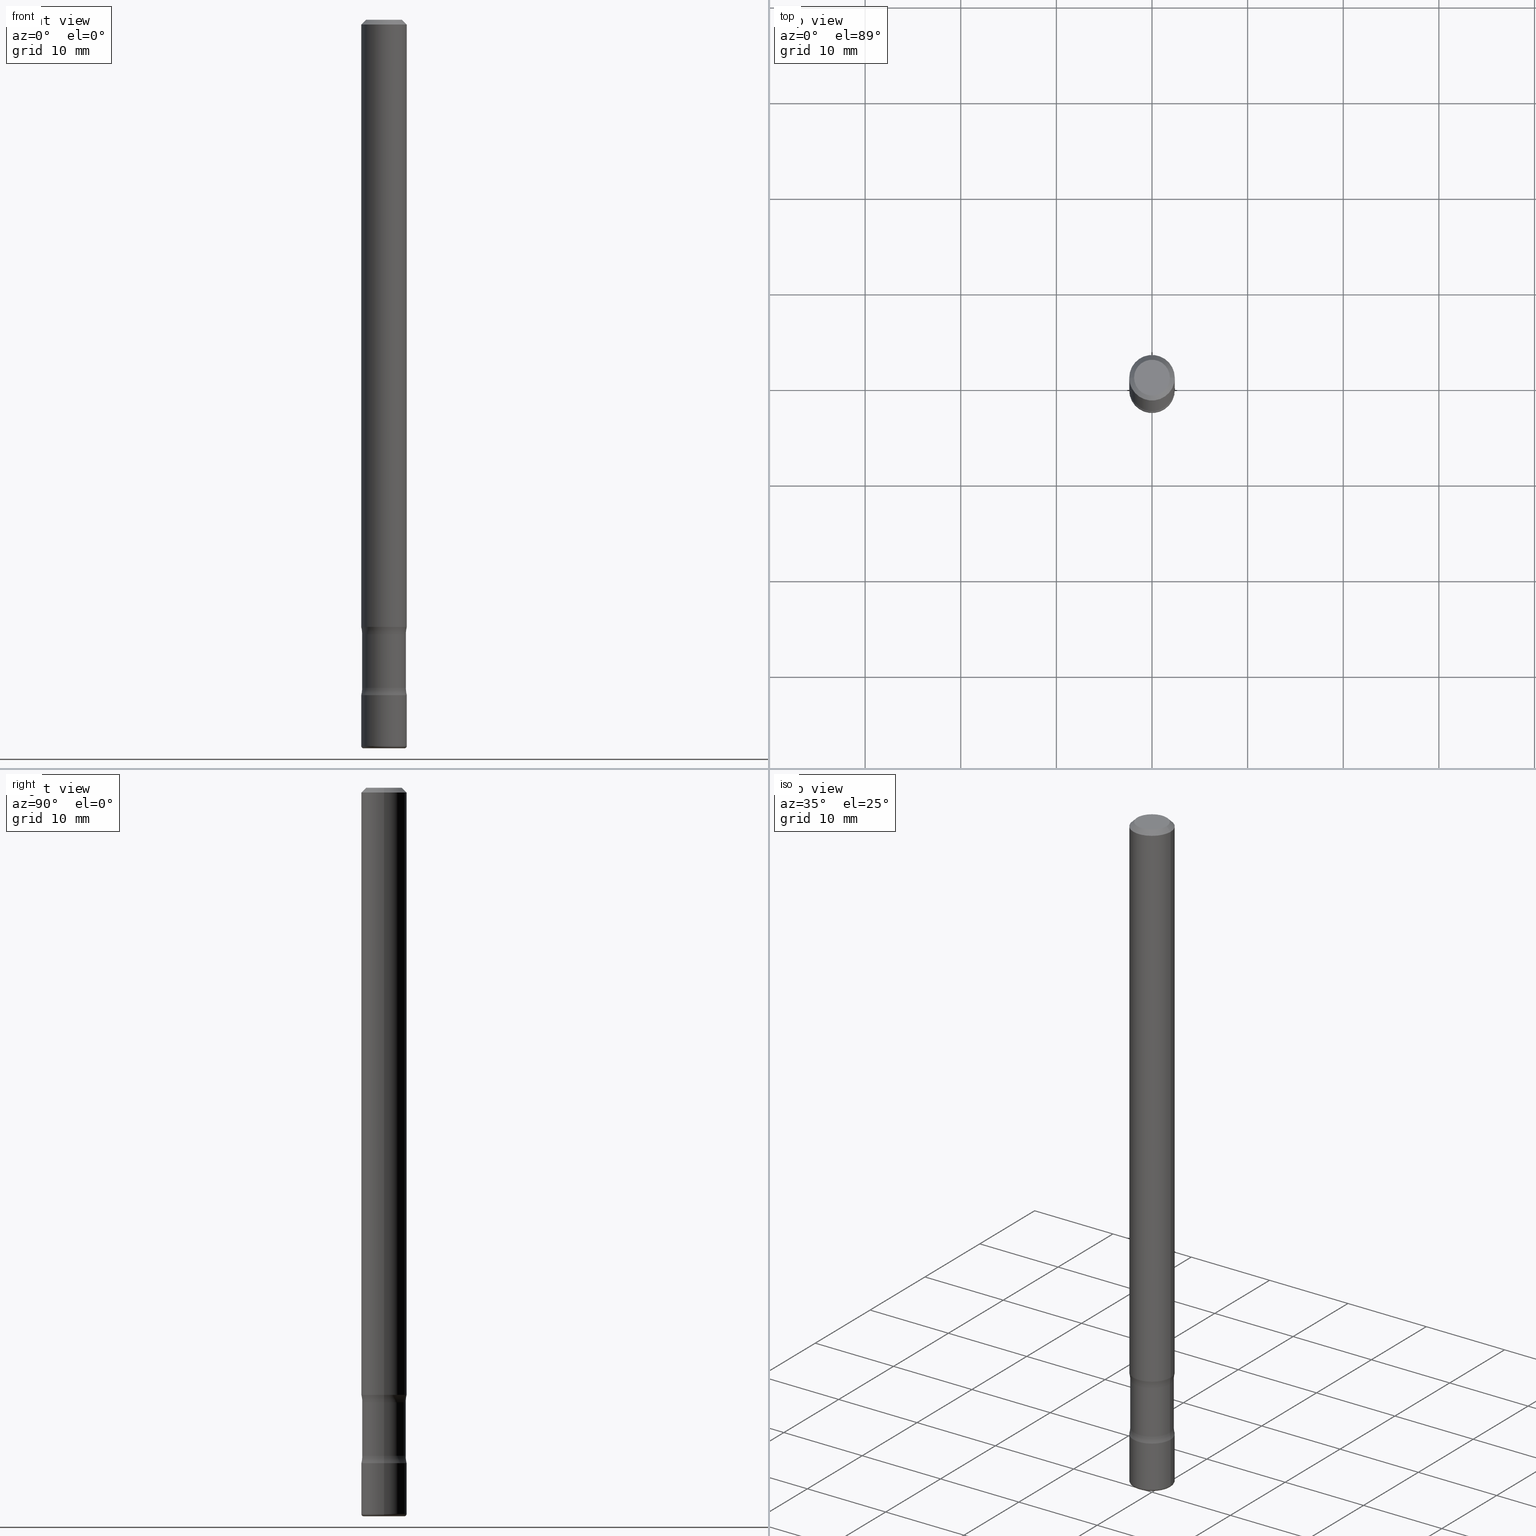
[diagram: canonical four-view strip — front | top / right | iso, engineering-drawing reading convention]
A machine part, canonical four-view strip (front | top / right | iso — engineering-drawing reading convention). The complete STEP part file that produces these views, byte-faithful:
ISO-10303-21;
HEADER;
FILE_DESCRIPTION (( 'STEP AP203' ),
    '1' );
FILE_NAME ('32752.STEP',
    '2023-03-11T07:00:07',
    ( '' ),
    ( '' ),
    'SwSTEP 2.0',
    'SolidWorks 2022',
    '' );
FILE_SCHEMA (( 'CONFIG_CONTROL_DESIGN' ));
ENDSEC;

DATA;
#1 = DIRECTION ( 'NONE',  ( -1.000000000000000000, 6.982962677686266711E-15, 0.000000000000000000 ) ) ;
#2 = AXIS2_PLACEMENT_3D ( 'NONE', #134, #204, #695 ) ;
#3 = CIRCLE ( 'NONE', #43, 0.09374999999999998612 ) ;
#4 = ADVANCED_FACE ( 'NONE', ( #296, #430 ), #773, .F. ) ;
#5 = DIRECTION ( 'NONE',  ( -1.000000000000000000, 6.982962677686265922E-15, -4.876176775795935793E-29 ) ) ;
#6 = SHAPE_DEFINITION_REPRESENTATION ( #364, #195 ) ;
#7 = EDGE_CURVE ( 'NONE', #788, #540, #284, .T. ) ;
#8 = DIRECTION ( 'NONE',  ( 2.445468806185136597E-29, -3.491481338843145583E-15, -1.000000000000000000 ) ) ;
#9 = AXIS2_PLACEMENT_3D ( 'NONE', #556, #499, #735 ) ;
#10 = CARTESIAN_POINT ( 'NONE',  ( 0.09374999999999998612, -1.036516065062364471E-14, -2.781200000000000561 ) ) ;
#11 = DIRECTION ( 'NONE',  ( -2.445468806185136597E-29, 3.491481338843145583E-15, 1.000000000000000000 ) ) ;
#12 = ORIENTED_EDGE ( 'NONE', *, *, #467, .T. ) ;
#13 = AXIS2_PLACEMENT_3D ( 'NONE', #61, #564, #316 ) ;
#14 = CIRCLE ( 'NONE', #463, 0.1250000000000000000 ) ;
#15 = DIRECTION ( 'NONE',  ( -2.445468806185136597E-29, 3.491481338843145583E-15, 1.000000000000000000 ) ) ;
#16 = DIRECTION ( 'NONE',  ( -2.445468806185136877E-29, 3.491481338843145188E-15, 1.000000000000000000 ) ) ;
#17 = VERTEX_POINT ( 'NONE', #740 ) ;
#18 = EDGE_CURVE ( 'NONE', #267, #110, #238, .T. ) ;
#19 = ORIENTED_EDGE ( 'NONE', *, *, #201, .F. ) ;
#20 = DIRECTION ( 'NONE',  ( -1.000000000000000000, 6.982962677686263555E-15, 0.000000000000000000 ) ) ;
#21 = CIRCLE ( 'NONE', #609, 0.1249999999999999584 ) ;
#22 = ORIENTED_EDGE ( 'NONE', *, *, #265, .F. ) ;
#23 = CARTESIAN_POINT ( 'NONE',  ( 0.08999999999999992728, -1.023287500604753476E-14, -2.750811885547141511 ) ) ;
#24 = AXIS2_PLACEMENT_3D ( 'NONE', #623, #69, #562 ) ;
#25 = CIRCLE ( 'NONE', #751, 0.09374999999999998612 ) ;
#26 = AXIS2_PLACEMENT_3D ( 'NONE', #414, #396, #651 ) ;
#27 = ORIENTED_EDGE ( 'NONE', *, *, #384, .F. ) ;
#28 = FACE_OUTER_BOUND ( 'NONE', #729, .T. ) ;
#29 = ADVANCED_FACE ( 'NONE', ( #307 ), #689, .F. ) ;
#30 = EDGE_LOOP ( 'NONE', ( #214, #333 ) ) ;
#31 = CARTESIAN_POINT ( 'NONE',  ( 6.727024657788853144E-29, -9.604408365055772961E-15, -2.750811885547141955 ) ) ;
#32 = CARTESIAN_POINT ( 'NONE',  ( 0.000000000000000000, 0.000000000000000000, 0.000000000000000000 ) ) ;
#33 = ORIENTED_EDGE ( 'NONE', *, *, #643, .T. ) ;
#34 = ADVANCED_FACE ( 'NONE', ( #128 ), #795, .F. ) ;
#35 = VERTEX_POINT ( 'NONE', #116 ) ;
#36 = DIRECTION ( 'NONE',  ( -2.445468806185136597E-29, 3.491481338843145583E-15, 1.000000000000000000 ) ) ;
#37 = DIRECTION ( 'NONE',  ( 1.000000000000000000, -6.982962677686265922E-15, 4.876176775795935793E-29 ) ) ;
#38 = AXIS2_PLACEMENT_3D ( 'NONE', #531, #522, #527 ) ;
#39 = DIRECTION ( 'NONE',  ( 1.000000000000000000, -6.982962677686263555E-15, 0.000000000000000000 ) ) ;
#40 = AXIS2_PLACEMENT_3D ( 'NONE', #293, #150, #787 ) ;
#41 = CARTESIAN_POINT ( 'NONE',  ( 0.2149999999999998856, -1.107941543457665199E-14, -2.750811885547141955 ) ) ;
#42 = EDGE_LOOP ( 'NONE', ( #19, #352 ) ) ;
#43 = AXIS2_PLACEMENT_3D ( 'NONE', #731, #54, #490 ) ;
#44 = EDGE_LOOP ( 'NONE', ( #668, #175, #658, #719 ) ) ;
#45 = CARTESIAN_POINT ( 'NONE',  ( 0.09374999999999998612, -9.371875034398946027E-15, -2.500000000000000000 ) ) ;
#46 = PLANE ( 'NONE',  #425 ) ;
#47 = CALENDAR_DATE ( 2023, 11, 3 ) ;
#48 = ORIENTED_EDGE ( 'NONE', *, *, #455, .F. ) ;
#49 = VERTEX_POINT ( 'NONE', #53 ) ;
#50 = CARTESIAN_POINT ( 'NONE',  ( 0.09374999999999998612, -6.546527510330874055E-16, 4.571415727308689105E-30 ) ) ;
#51 = ADVANCED_FACE ( 'NONE', ( #191 ), #255, .T. ) ;
#52 = PERSON_AND_ORGANIZATION ( #603, #77 ) ;
#53 = CARTESIAN_POINT ( 'NONE',  ( 7.330054968152206104E-29, -1.046537582866243864E-14, -2.997402767769051568 ) ) ;
#54 = DIRECTION ( 'NONE',  ( -2.445468806185136597E-29, 3.491481338843145583E-15, 1.000000000000000000 ) ) ;
#55 = COORDINATED_UNIVERSAL_TIME_OFFSET ( 5, 0, .BEHIND. ) ;
#56 = ORIENTED_EDGE ( 'NONE', *, *, #417, .F. ) ;
#57 = TOROIDAL_SURFACE ( 'NONE', #322, 0.2149999999999998856, 0.1250000000000000000 ) ;
#58 = DIRECTION ( 'NONE',  ( 2.438088387897960049E-29, -3.491481338843145188E-15, -1.000000000000000000 ) ) ;
#59 = DIRECTION ( 'NONE',  ( -1.000000000000000000, 6.982962677686273810E-15, 0.000000000000000000 ) ) ;
#60 = ORIENTED_EDGE ( 'NONE', *, *, #500, .T. ) ;
#61 = CARTESIAN_POINT ( 'NONE',  ( 6.113672015462842613E-29, -8.728703347107864943E-15, -2.500000000000000000 ) ) ;
#62 = APPLICATION_CONTEXT ( 'configuration controlled 3d designs of mechanical parts and assemblies' ) ;
#63 = EDGE_CURVE ( 'NONE', #162, #544, #615, .T. ) ;
#64 = DIRECTION ( 'NONE',  ( 1.000000000000000000, -6.982962677686265133E-15, 4.876176775795935793E-29 ) ) ;
#65 = APPROVAL_ROLE ( '' ) ;
#66 = CARTESIAN_POINT ( 'NONE',  ( 0.09375000000000002776, -1.036516065062364471E-14, -2.781200000000000561 ) ) ;
#67 = ADVANCED_FACE ( 'NONE', ( #803 ), #571, .F. ) ;
#68 = ADVANCED_FACE ( 'NONE', ( #493 ), #192, .F. ) ;
#69 = DIRECTION ( 'NONE',  ( -6.982962677686266711E-15, -1.000000000000000000, 3.491481338843145583E-15 ) ) ;
#70 = TOROIDAL_SURFACE ( 'NONE', #143, 0.2149999999999998856, 0.1250000000000000000 ) ;
#71 = TOROIDAL_SURFACE ( 'NONE', #521, 0.2149999999999998856, 0.1249999999999999584 ) ;
#72 = ADVANCED_FACE ( 'NONE', ( #446 ), #156, .T. ) ;
#73 = DIRECTION ( 'NONE',  ( -2.438088387897960049E-29, 3.491481338843145188E-15, 1.000000000000000000 ) ) ;
#74 = CARTESIAN_POINT ( 'NONE',  ( 6.801337843762102328E-29, -9.710507899590557993E-15, -2.781200000000000561 ) ) ;
#75 = DIRECTION ( 'NONE',  ( 1.000000000000000000, -6.982962677686265922E-15, 4.883557194083112901E-29 ) ) ;
#76 = DIRECTION ( 'NONE',  ( 2.445468806185136597E-29, -3.491481338843145583E-15, -1.000000000000000000 ) ) ;
#77 = ORGANIZATION ( 'UNSPECIFIED', 'UNSPECIFIED', '' ) ;
#78 = CARTESIAN_POINT ( 'NONE',  ( 6.801337843762102328E-29, -9.710507899590557993E-15, -2.781200000000000561 ) ) ;
#79 = CIRCLE ( 'NONE', #40, 0.1250000000000000000 ) ;
#80 = VERTEX_POINT ( 'NONE', #309 ) ;
#81 = CARTESIAN_POINT ( 'NONE',  ( 6.727024657788852023E-29, -9.604408365055771383E-15, -2.750811885547141511 ) ) ;
#82 = CARTESIAN_POINT ( 'NONE',  ( 7.336406418555409790E-29, -1.047444401652943635E-14, -3.000000000000000444 ) ) ;
#83 = ORIENTED_EDGE ( 'NONE', *, *, #210, .T. ) ;
#84 = DIRECTION ( 'NONE',  ( -6.982962677686266711E-15, -1.000000000000000000, 3.491481338843145583E-15 ) ) ;
#85 = EDGE_LOOP ( 'NONE', ( #385, #790 ) ) ;
#86 = APPROVAL ( #376, 'UNSPECIFIED' ) ;
#87 = EDGE_CURVE ( 'NONE', #479, #484, #712, .T. ) ;
#88 =( GEOMETRIC_REPRESENTATION_CONTEXT ( 3 ) GLOBAL_UNCERTAINTY_ASSIGNED_CONTEXT ( ( #144 ) ) GLOBAL_UNIT_ASSIGNED_CONTEXT ( ( #582, #415, #403 ) ) REPRESENTATION_CONTEXT ( 'NONE', 'WORKASPACE' ) );
#89 = ORIENTED_EDGE ( 'NONE', *, *, #206, .F. ) ;
#90 = DIRECTION ( 'NONE',  ( 7.105427357601001859E-15, 1.000000000000000000, -3.491481338843145583E-15 ) ) ;
#91 = CARTESIAN_POINT ( 'NONE',  ( 7.336406418555409790E-29, -1.047444401652943635E-14, -3.000000000000000444 ) ) ;
#92 = CONICAL_SURFACE ( 'NONE', #690, 0.09374999999999975020, 0.7853981633974482790 ) ;
#93 = ADVANCED_FACE ( 'NONE', ( #257 ), #92, .T. ) ;
#94 = ORIENTED_EDGE ( 'NONE', *, *, #18, .T. ) ;
#95 = LINE ( 'NONE', #526, #176 ) ;
#96 = DIRECTION ( 'NONE',  ( 2.445468806185136597E-29, -3.491481338843145583E-15, -1.000000000000000000 ) ) ;
#97 = ORIENTED_EDGE ( 'NONE', *, *, #460, .T. ) ;
#98 = MANIFOLD_SOLID_BREP ( 'Body-Move/Copy2[2]', #517 ) ;
#99 = EDGE_LOOP ( 'NONE', ( #596, #676, #48, #291 ) ) ;
#100 = DIRECTION ( 'NONE',  ( -2.445468806185136877E-29, 3.491481338843145188E-15, 1.000000000000000000 ) ) ;
#101 = MANIFOLD_SOLID_BREP ( 'Body-Move/Copy2[4]', #661 ) ;
#102 = DIRECTION ( 'NONE',  ( 1.000000000000000000, -6.982962677686269077E-15, 0.000000000000000000 ) ) ;
#103 = ORIENTED_EDGE ( 'NONE', *, *, #353, .F. ) ;
#104 = VERTEX_POINT ( 'NONE', #607 ) ;
#105 = EDGE_CURVE ( 'NONE', #35, #569, #338, .T. ) ;
#106 = CYLINDRICAL_SURFACE ( 'NONE', #448, 0.09374999999999987510 ) ;
#107 = DIRECTION ( 'NONE',  ( 2.438088387897960049E-29, -3.491481338843145188E-15, -1.000000000000000000 ) ) ;
#108 = AXIS2_PLACEMENT_3D ( 'NONE', #249, #673, #612 ) ;
#109 = COORDINATED_UNIVERSAL_TIME_OFFSET ( 5, 0, .BEHIND. ) ;
#110 = VERTEX_POINT ( 'NONE', #66 ) ;
#111 = AXIS2_PLACEMENT_3D ( 'NONE', #160, #715, #39 ) ;
#112 = ORIENTED_EDGE ( 'NONE', *, *, #131, .T. ) ;
#113 = DIRECTION ( 'NONE',  ( 1.000000000000000000, -6.982962677686254878E-15, 0.000000000000000000 ) ) ;
#114 = DIRECTION ( 'NONE',  ( 1.000000000000000000, -6.982962677686267499E-15, 0.000000000000000000 ) ) ;
#115 = DATE_AND_TIME ( #667, #548 ) ;
#116 = CARTESIAN_POINT ( 'NONE',  ( -0.09374999999999998612, -8.062569532332771018E-15, -2.500000000000000000 ) ) ;
#117 = CARTESIAN_POINT ( 'NONE',  ( -0.08999999999999989952, -8.128941975895664340E-15, -2.530388114452858606 ) ) ;
#118 = PERSON_AND_ORGANIZATION ( #603, #77 ) ;
#119 = VERTEX_POINT ( 'NONE', #734 ) ;
#120 = DIRECTION ( 'NONE',  ( 1.000000000000000000, -6.982962677686273810E-15, 0.000000000000000000 ) ) ;
#121 = CARTESIAN_POINT ( 'NONE',  ( -0.09374999999999975020, 5.848231242562227268E-16, -0.02000000000000004205 ) ) ;
#122 = ORIENTED_EDGE ( 'NONE', *, *, #507, .F. ) ;
#123 = ADVANCED_FACE ( 'NONE', ( #185 ), #304, .T. ) ;
#124 = AXIS2_PLACEMENT_3D ( 'NONE', #551, #126, #1 ) ;
#125 = CIRCLE ( 'NONE', #26, 0.09374999999999998612 ) ;
#126 = DIRECTION ( 'NONE',  ( 2.445468806185136597E-29, -3.491481338843145583E-15, -1.000000000000000000 ) ) ;
#127 = DIRECTION ( 'NONE',  ( -0.7071067811865474617, 2.468850131082256666E-15, -0.7071067811865474617 ) ) ;
#128 = FACE_OUTER_BOUND ( 'NONE', #528, .T. ) ;
#129 = ADVANCED_FACE ( 'NONE', ( #439 ), #622, .T. ) ;
#130 = DIRECTION ( 'NONE',  ( -2.445468806185136877E-29, 3.491481338843145188E-15, 1.000000000000000000 ) ) ;
#131 = EDGE_CURVE ( 'NONE', #525, #104, #635, .T. ) ;
#132 = AXIS2_PLACEMENT_3D ( 'NONE', #472, #96, #765 ) ;
#133 = VECTOR ( 'NONE', #130, 39.37007874015748143 ) ;
#134 = CARTESIAN_POINT ( 'NONE',  ( 6.801337843762102328E-29, -9.710507899590557993E-15, -2.781200000000000561 ) ) ;
#135 = AXIS2_PLACEMENT_3D ( 'NONE', #81, #11, #509 ) ;
#136 = AXIS2_PLACEMENT_3D ( 'NONE', #627, #36, #410 ) ;
#137 = APPROVAL ( #183, 'UNSPECIFIED' ) ;
#138 = PLANE ( 'NONE',  #775 ) ;
#139 = CARTESIAN_POINT ( 'NONE',  ( -0.08999999999999991340, -8.089214884923775785E-15, -2.500000000000000000 ) ) ;
#140 = CARTESIAN_POINT ( 'NONE',  ( 7.330054968152206104E-29, -1.046537582866243864E-14, -2.997402767769051568 ) ) ;
#141 = FACE_OUTER_BOUND ( 'NONE', #486, .T. ) ;
#142 = FACE_OUTER_BOUND ( 'NONE', #347, .T. ) ;
#143 = AXIS2_PLACEMENT_3D ( 'NONE', #718, #233, #660 ) ;
#144 = UNCERTAINTY_MEASURE_WITH_UNIT (LENGTH_MEASURE( 1.000000000000000082E-05 ), #582, 'distance_accuracy_value', 'NONE');
#145 = AXIS2_PLACEMENT_3D ( 'NONE', #711, #155, #367 ) ;
#146 = ORIENTED_EDGE ( 'NONE', *, *, #758, .F. ) ;
#147 = ORIENTED_EDGE ( 'NONE', *, *, #63, .F. ) ;
#148 = EDGE_CURVE ( 'NONE', #784, #225, #301, .T. ) ;
#149 = DIRECTION ( 'NONE',  ( -1.000000000000000000, 6.860497997771532351E-15, 0.000000000000000000 ) ) ;
#150 = DIRECTION ( 'NONE',  ( 6.860497997771531562E-15, 1.000000000000000000, -3.491481338843145583E-15 ) ) ;
#151 = EDGE_CURVE ( 'NONE', #479, #80, #679, .T. ) ;
#152 = DIRECTION ( 'NONE',  ( 6.860497997771531562E-15, 1.000000000000000000, -3.491481338843145583E-15 ) ) ;
#153 = CIRCLE ( 'NONE', #132, 0.08999999999999989952 ) ;
#154 = ORIENTED_EDGE ( 'NONE', *, *, #378, .F. ) ;
#155 = DIRECTION ( 'NONE',  ( -2.445468806185136597E-29, 3.491481338843145583E-15, 1.000000000000000000 ) ) ;
#156 = CONICAL_SURFACE ( 'NONE', #451, 0.09374999999999975020, 0.7853981633974482790 ) ;
#157 = ADVANCED_FACE ( 'NONE', ( #142 ), #514, .T. ) ;
#158 = DIRECTION ( 'NONE',  ( 2.445468806185136597E-29, -3.491481338843145583E-15, -1.000000000000000000 ) ) ;
#159 = ORIENTED_EDGE ( 'NONE', *, *, #105, .F. ) ;
#160 = CARTESIAN_POINT ( 'NONE',  ( 7.311951730493558245E-29, -1.043952920314100628E-14, -2.990000000000000213 ) ) ;
#161 = LENGTH_MEASURE_WITH_UNIT ( LENGTH_MEASURE( 0.02539999999999999897 ), #213 );
#162 = VERTEX_POINT ( 'NONE', #391 ) ;
#163 = EDGE_CURVE ( 'NONE', #569, #162, #239, .T. ) ;
#164 = ORIENTED_EDGE ( 'NONE', *, *, #781, .F. ) ;
#165 = CARTESIAN_POINT ( 'NONE',  ( 0.09375000000000002776, -1.035367958688163750E-14, -2.781200000000000561 ) ) ;
#166 = DIRECTION ( 'NONE',  ( -1.000000000000000000, 6.982962677686265922E-15, -4.876176775795935793E-29 ) ) ;
#167 = CIRCLE ( 'NONE', #547, 0.1249999999999999584 ) ;
#168 = EDGE_LOOP ( 'NONE', ( #421, #408, #216, #283 ) ) ;
#169 = ORIENTED_EDGE ( 'NONE', *, *, #400, .T. ) ;
#170 = LINE ( 'NONE', #541, #254 ) ;
#171 = AXIS2_PLACEMENT_3D ( 'NONE', #714, #655, #37 ) ;
#172 = CARTESIAN_POINT ( 'NONE',  ( 6.113672015462842613E-29, -8.728703347107864943E-15, -2.500000000000000000 ) ) ;
#173 = CIRCLE ( 'NONE', #272, 0.01000000000000035409 ) ;
#174 = APPROVAL_ROLE ( '' ) ;
#175 = ORIENTED_EDGE ( 'NONE', *, *, #789, .T. ) ;
#176 = VECTOR ( 'NONE', #774, 39.37007874015748143 ) ;
#177 = ORIENTED_EDGE ( 'NONE', *, *, #640, .F. ) ;
#178 = DIRECTION ( 'NONE',  ( -1.000000000000000000, 7.105427357601001859E-15, 0.000000000000000000 ) ) ;
#179 = APPLICATION_PROTOCOL_DEFINITION ( 'international standard', 'config_control_design', 1994, #62 ) ;
#180 = ORIENTED_EDGE ( 'NONE', *, *, #543, .T. ) ;
#181 = DIRECTION ( 'NONE',  ( -2.445468806185136597E-29, 3.491481338843145583E-15, 1.000000000000000000 ) ) ;
#182 = CARTESIAN_POINT ( 'NONE',  ( -0.09374999999999998612, -8.074050596074776650E-15, -2.500000000000000000 ) ) ;
#183 = APPROVAL_STATUS ( 'not_yet_approved' ) ;
#184 = ORIENTED_EDGE ( 'NONE', *, *, #87, .T. ) ;
#185 = FACE_OUTER_BOUND ( 'NONE', #168, .T. ) ;
#186 = DIRECTION ( 'NONE',  ( 7.105427357601001859E-15, 1.000000000000000000, -3.491481338843145583E-15 ) ) ;
#187 = LOCAL_TIME ( 2, 0, 7.000000000000000000, #294 ) ;
#188 = CALENDAR_DATE ( 2023, 11, 3 ) ;
#189 = AXIS2_PLACEMENT_3D ( 'NONE', #685, #678, #619 ) ;
#190 = AXIS2_PLACEMENT_3D ( 'NONE', #91, #565, #321 ) ;
#191 = FACE_OUTER_BOUND ( 'NONE', #413, .T. ) ;
#192 = PLANE ( 'NONE',  #613 ) ;
#193 = DIRECTION ( 'NONE',  ( 2.445468806185136597E-29, -3.491481338843145583E-15, -1.000000000000000000 ) ) ;
#194 = PRODUCT_RELATED_PRODUCT_CATEGORY ( 'detail', '', ( #576 ) ) ;
#195 = ADVANCED_BREP_SHAPE_REPRESENTATION ( '32752', ( #380, #98, #637, #101, #260 ), #88 ) ;
#196 = FACE_OUTER_BOUND ( 'NONE', #327, .T. ) ;
#197 = AXIS2_PLACEMENT_3D ( 'NONE', #684, #555, #800 ) ;
#198 = DIRECTION ( 'NONE',  ( 1.000000000000000000, -6.982962677686273810E-15, 0.000000000000000000 ) ) ;
#199 = DIRECTION ( 'NONE',  ( -1.000000000000000000, 6.982962677686275388E-15, 0.000000000000000000 ) ) ;
#200 = DIRECTION ( 'NONE',  ( -2.445468806185136597E-29, 3.491481338843145583E-15, 1.000000000000000000 ) ) ;
#201 = EDGE_CURVE ( 'NONE', #110, #342, #25, .T. ) ;
#202 = DIRECTION ( 'NONE',  ( 2.445468806185136597E-29, -3.491481338843145583E-15, -1.000000000000000000 ) ) ;
#203 = ORIENTED_EDGE ( 'NONE', *, *, #601, .T. ) ;
#204 = DIRECTION ( 'NONE',  ( -2.445468806185136597E-29, 3.491481338843145583E-15, 1.000000000000000000 ) ) ;
#205 = SECURITY_CLASSIFICATION ( '', '', #549 ) ;
#206 = EDGE_CURVE ( 'NONE', #768, #407, #409, .T. ) ;
#207 = DIRECTION ( 'NONE',  ( -0.9993908270190957621, 6.856857904024558837E-15, -0.03489949670250019204 ) ) ;
#208 = ORIENTED_EDGE ( 'NONE', *, *, #315, .T. ) ;
#209 = FACE_OUTER_BOUND ( 'NONE', #697, .T. ) ;
#210 = EDGE_CURVE ( 'NONE', #17, #267, #222, .T. ) ;
#211 = TOROIDAL_SURFACE ( 'NONE', #287, 0.08374999999999999112, 0.01000000000000035409 ) ;
#212 = AXIS2_PLACEMENT_3D ( 'NONE', #31, #221, #572 ) ;
#213 =( LENGTH_UNIT ( ) NAMED_UNIT ( * ) SI_UNIT ( $, .METRE. ) );
#214 = ORIENTED_EDGE ( 'NONE', *, *, #747, .F. ) ;
#215 = CARTESIAN_POINT ( 'NONE',  ( 6.187985201436090676E-29, -8.834802881642648397E-15, -2.530388114452858606 ) ) ;
#216 = ORIENTED_EDGE ( 'NONE', *, *, #601, .F. ) ;
#217 = DIRECTION ( 'NONE',  ( 1.000000000000000000, -6.982962677686262766E-15, 0.000000000000000000 ) ) ;
#218 = DIRECTION ( 'NONE',  ( -2.445468806185136597E-29, 3.491481338843145583E-15, 1.000000000000000000 ) ) ;
#219 = ORIENTED_EDGE ( 'NONE', *, *, #279, .T. ) ;
#220 = EDGE_LOOP ( 'NONE', ( #464, #226 ) ) ;
#221 = DIRECTION ( 'NONE',  ( 2.445468806185136597E-29, -3.491481338843145583E-15, -1.000000000000000000 ) ) ;
#222 = CIRCLE ( 'NONE', #135, 0.08999999999999992728 ) ;
#223 = TOROIDAL_SURFACE ( 'NONE', #681, 0.2149999999999998856, 0.1250000000000000000 ) ;
#224 = DIRECTION ( 'NONE',  ( 1.000000000000000000, -6.982962677686276177E-15, 0.000000000000000000 ) ) ;
#225 = VERTEX_POINT ( 'NONE', #328 ) ;
#226 = ORIENTED_EDGE ( 'NONE', *, *, #355, .T. ) ;
#227 = CARTESIAN_POINT ( 'NONE',  ( 6.801337843762102328E-29, -9.710507899590557993E-15, -2.781200000000000561 ) ) ;
#228 = DIRECTION ( 'NONE',  ( -2.445468806185136877E-29, 3.491481338843145188E-15, 1.000000000000000000 ) ) ;
#229 = ADVANCED_FACE ( 'NONE', ( #566 ), #211, .T. ) ;
#230 = PERSON_AND_ORGANIZATION ( #603, #77 ) ;
#231 = ORIENTED_EDGE ( 'NONE', *, *, #802, .T. ) ;
#232 = CARTESIAN_POINT ( 'NONE',  ( 7.330054968152206104E-29, -1.046537582866243864E-14, -2.997402767769051568 ) ) ;
#233 = DIRECTION ( 'NONE',  ( 2.445468806185136597E-29, -3.491481338843145583E-15, -1.000000000000000000 ) ) ;
#234 = DATE_AND_TIME ( #47, #187 ) ;
#235 = EDGE_CURVE ( 'NONE', #621, #617, #253, .T. ) ;
#236 = ORIENTED_EDGE ( 'NONE', *, *, #346, .F. ) ;
#237 = LINE ( 'NONE', #50, #442 ) ;
#238 = CIRCLE ( 'NONE', #24, 0.1249999999999999584 ) ;
#239 = CIRCLE ( 'NONE', #794, 0.1250000000000000278 ) ;
#240 = DATE_AND_TIME ( #188, #406 ) ;
#241 = TOROIDAL_SURFACE ( 'NONE', #212, 0.2149999999999998856, 0.1249999999999999584 ) ;
#242 = CARTESIAN_POINT ( 'NONE',  ( 6.113672015462842613E-29, -8.728703347107864943E-15, -2.500000000000000000 ) ) ;
#243 = ADVANCED_FACE ( 'NONE', ( #196 ), #57, .F. ) ;
#244 = CARTESIAN_POINT ( 'NONE',  ( -0.09374999999999975020, 5.848231242562227268E-16, -0.02000000000000004205 ) ) ;
#245 = ORIENTED_EDGE ( 'NONE', *, *, #758, .T. ) ;
#246 = DIRECTION ( 'NONE',  ( -2.438088387897960049E-29, 3.491481338843145188E-15, 1.000000000000000000 ) ) ;
#247 = DIRECTION ( 'NONE',  ( -1.000000000000000000, 7.105427357601006592E-15, 0.000000000000000000 ) ) ;
#248 = DIRECTION ( 'NONE',  ( 1.000000000000000000, 0.000000000000000000, 0.000000000000000000 ) ) ;
#249 = CARTESIAN_POINT ( 'NONE',  ( 6.727024657788853144E-29, -9.604408365055772961E-15, -2.750811885547141955 ) ) ;
#250 = DIRECTION ( 'NONE',  ( 7.105427357601001859E-15, 1.000000000000000000, -3.491481338843145583E-15 ) ) ;
#251 = DATE_AND_TIME ( #447, #530 ) ;
#252 = EDGE_CURVE ( 'NONE', #342, #110, #741, .T. ) ;
#253 = CIRCLE ( 'NONE', #491, 0.09374999999999998612 ) ;
#254 = VECTOR ( 'NONE', #373, 39.37007874015748854 ) ;
#255 = CYLINDRICAL_SURFACE ( 'NONE', #474, 0.09374999999999987510 ) ;
#256 = ADVANCED_FACE ( 'NONE', ( #749 ), #138, .F. ) ;
#257 = FACE_OUTER_BOUND ( 'NONE', #295, .T. ) ;
#258 = DIRECTION ( 'NONE',  ( -1.000000000000000000, 6.982962677686275388E-15, 0.000000000000000000 ) ) ;
#259 = ADVANCED_FACE ( 'NONE', ( #268 ), #457, .F. ) ;
#260 = AXIS2_PLACEMENT_3D ( 'NONE', #32, #277, #248 ) ;
#261 = TOROIDAL_SURFACE ( 'NONE', #312, 0.2149999999999998856, 0.1250000000000000000 ) ;
#262 = CARTESIAN_POINT ( 'NONE',  ( 6.187985201436090676E-29, -8.834802881642648397E-15, -2.530388114452858606 ) ) ;
#263 = VECTOR ( 'NONE', #127, 39.37007874015748854 ) ;
#264 = ORIENTED_EDGE ( 'NONE', *, *, #495, .T. ) ;
#265 = EDGE_CURVE ( 'NONE', #525, #469, #753, .T. ) ;
#266 = DIRECTION ( 'NONE',  ( -2.445468806185136597E-29, 3.491481338843145583E-15, 1.000000000000000000 ) ) ;
#267 = VERTEX_POINT ( 'NONE', #23 ) ;
#268 = FACE_OUTER_BOUND ( 'NONE', #306, .T. ) ;
#269 = ADVANCED_FACE ( 'NONE', ( #209 ), #261, .F. ) ;
#270 = ORIENTED_EDGE ( 'NONE', *, *, #747, .T. ) ;
#271 = DIRECTION ( 'NONE',  ( -2.445468806185136597E-29, 3.491481338843145583E-15, 1.000000000000000000 ) ) ;
#272 = AXIS2_PLACEMENT_3D ( 'NONE', #644, #90, #538 ) ;
#273 = CIRCLE ( 'NONE', #636, 0.08374999999999999112 ) ;
#274 = EDGE_LOOP ( 'NONE', ( #554, #716, #779 ) ) ;
#275 = ORIENTED_EDGE ( 'NONE', *, *, #505, .T. ) ;
#276 = DIRECTION ( 'NONE',  ( 1.000000000000000000, -6.982962677686263555E-15, 0.000000000000000000 ) ) ;
#277 = DIRECTION ( 'NONE',  ( 0.000000000000000000, 0.000000000000000000, 1.000000000000000000 ) ) ;
#278 = EDGE_LOOP ( 'NONE', ( #438, #83, #468, #793 ) ) ;
#279 = EDGE_CURVE ( 'NONE', #469, #598, #662, .T. ) ;
#280 = FACE_OUTER_BOUND ( 'NONE', #583, .T. ) ;
#281 = DIRECTION ( 'NONE',  ( -2.445468806185136597E-29, 3.491481338843145583E-15, 1.000000000000000000 ) ) ;
#282 = AXIS2_PLACEMENT_3D ( 'NONE', #82, #281, #102 ) ;
#283 = ORIENTED_EDGE ( 'NONE', *, *, #537, .F. ) ;
#284 = LINE ( 'NONE', #560, #133 ) ;
#285 = DIRECTION ( 'NONE',  ( -2.445468806185136597E-29, 3.491481338843145583E-15, 1.000000000000000000 ) ) ;
#286 = ADVANCED_FACE ( 'NONE', ( #336 ), #46, .F. ) ;
#287 = AXIS2_PLACEMENT_3D ( 'NONE', #579, #757, #703 ) ;
#288 = CIRCLE ( 'NONE', #136, 0.07374999999999973244 ) ;
#289 = DIRECTION ( 'NONE',  ( 1.000000000000000000, -6.982962677686265922E-15, 4.876176775795935793E-29 ) ) ;
#290 = ORIENTED_EDGE ( 'NONE', *, *, #806, .T. ) ;
#291 = ORIENTED_EDGE ( 'NONE', *, *, #87, .F. ) ;
#292 = CARTESIAN_POINT ( 'NONE',  ( -0.2149999999999998856, -7.307135999758434007E-15, -2.530388114452858606 ) ) ;
#293 = CARTESIAN_POINT ( 'NONE',  ( 0.2149999999999998856, -1.030980995116352743E-14, -2.530388114452858606 ) ) ;
#294 = COORDINATED_UNIVERSAL_TIME_OFFSET ( 5, 0, .BEHIND. ) ;
#295 = EDGE_LOOP ( 'NONE', ( #586, #337, #429, #60 ) ) ;
#296 = FACE_OUTER_BOUND ( 'NONE', #799, .T. ) ;
#297 = LINE ( 'NONE', #121, #263 ) ;
#298 = PERSON_AND_ORGANIZATION_ROLE ( 'creator' ) ;
#299 = AXIS2_PLACEMENT_3D ( 'NONE', #657, #708, #641 ) ;
#300 = CYLINDRICAL_SURFACE ( 'NONE', #700, 0.08999999999999991340 ) ;
#301 = CIRCLE ( 'NONE', #649, 0.08999999999999989952 ) ;
#302 = PERSON_AND_ORGANIZATION ( #603, #77 ) ;
#303 = ORIENTED_EDGE ( 'NONE', *, *, #467, .F. ) ;
#304 = CYLINDRICAL_SURFACE ( 'NONE', #197, 0.09374999999999998612 ) ;
#305 = CARTESIAN_POINT ( 'NONE',  ( -0.2149999999999998856, -8.076741483171558571E-15, -2.750811885547141955 ) ) ;
#306 = EDGE_LOOP ( 'NONE', ( #203, #169 ) ) ;
#307 = FACE_OUTER_BOUND ( 'NONE', #475, .T. ) ;
#308 = FACE_OUTER_BOUND ( 'NONE', #750, .T. ) ;
#309 = CARTESIAN_POINT ( 'NONE',  ( -0.08374999999999999112, -9.826379931848133223E-15, -3.000000000000000888 ) ) ;
#310 = ADVANCED_FACE ( 'NONE', ( #542 ), #584, .T. ) ;
#311 = CLOSED_SHELL ( 'NONE', ( #310, #683, #243, #269, #341, #129, #388, #512 ) ) ;
#312 = AXIS2_PLACEMENT_3D ( 'NONE', #215, #687, #630 ) ;
#313 = CIRCLE ( 'NONE', #145, 0.09374999999999975020 ) ;
#314 = DIRECTION ( 'NONE',  ( -2.445468806185136597E-29, 3.491481338843145583E-15, 1.000000000000000000 ) ) ;
#315 = EDGE_CURVE ( 'NONE', #225, #621, #79, .T. ) ;
#316 = DIRECTION ( 'NONE',  ( 1.000000000000000000, -6.982962677686273810E-15, 0.000000000000000000 ) ) ;
#317 = DIRECTION ( 'NONE',  ( -6.982962677686266711E-15, -1.000000000000000000, 3.491481338843145583E-15 ) ) ;
#318 = DIRECTION ( 'NONE',  ( -2.445468806185136597E-29, 3.491481338843145583E-15, 1.000000000000000000 ) ) ;
#319 = ORIENTED_EDGE ( 'NONE', *, *, #334, .F. ) ;
#320 = CC_DESIGN_APPROVAL ( #86, ( #324 ) ) ;
#321 = DIRECTION ( 'NONE',  ( 1.000000000000000000, -6.982962677686269077E-15, 0.000000000000000000 ) ) ;
#322 = AXIS2_PLACEMENT_3D ( 'NONE', #520, #266, #75 ) ;
#323 = DIRECTION ( 'NONE',  ( 2.438088387897960049E-29, -3.491481338843145188E-15, -1.000000000000000000 ) ) ;
#324 = PRODUCT_DEFINITION ( 'UNKNOWN', '', #675, #329 ) ;
#325 = AXIS2_PLACEMENT_3D ( 'NONE', #510, #285, #752 ) ;
#326 = DIRECTION ( 'NONE',  ( 2.445468806185136597E-29, -3.491481338843145583E-15, -1.000000000000000000 ) ) ;
#327 = EDGE_LOOP ( 'NONE', ( #159, #672, #231, #465 ) ) ;
#328 = CARTESIAN_POINT ( 'NONE',  ( 0.08999999999999989952, -9.412061367920514428E-15, -2.530388114452858606 ) ) ;
#329 = DESIGN_CONTEXT ( 'detailed design', #62, 'design' ) ;
#330 = ADVANCED_FACE ( 'NONE', ( #28 ), #70, .F. ) ;
#331 = DIRECTION ( 'NONE',  ( -2.445468806185136597E-29, 3.491481338843145583E-15, 1.000000000000000000 ) ) ;
#332 = DIRECTION ( 'NONE',  ( 1.000000000000000000, -6.982962677686265133E-15, 0.000000000000000000 ) ) ;
#333 = ORIENTED_EDGE ( 'NONE', *, *, #235, .F. ) ;
#334 = EDGE_CURVE ( 'NONE', #267, #162, #405, .T. ) ;
#335 = ORIENTED_EDGE ( 'NONE', *, *, #505, .F. ) ;
#336 = FACE_OUTER_BOUND ( 'NONE', #30, .T. ) ;
#337 = ORIENTED_EDGE ( 'NONE', *, *, #592, .F. ) ;
#338 = CIRCLE ( 'NONE', #503, 0.09374999999999998612 ) ;
#339 = DIRECTION ( 'NONE',  ( 1.000000000000000000, -6.982962677686267499E-15, 4.883557194083114022E-29 ) ) ;
#340 = TOROIDAL_SURFACE ( 'NONE', #713, 0.08374999999999999112, 0.01000000000000035409 ) ;
#341 = ADVANCED_FACE ( 'NONE', ( #722 ), #362, .T. ) ;
#342 = VERTEX_POINT ( 'NONE', #666 ) ;
#343 = CARTESIAN_POINT ( 'NONE',  ( -0.2149999999999998856, -7.333465905940101685E-15, -2.530388114452858606 ) ) ;
#344 = CARTESIAN_POINT ( 'NONE',  ( -0.09375000000000002776, -9.055855148557471277E-15, -2.781200000000000561 ) ) ;
#345 = ORIENTED_EDGE ( 'NONE', *, *, #524, .T. ) ;
#346 = EDGE_CURVE ( 'NONE', #80, #788, #173, .T. ) ;
#347 = EDGE_LOOP ( 'NONE', ( #539, #769, #456, #177 ) ) ;
#348 = DIRECTION ( 'NONE',  ( -2.445468806185136597E-29, 3.491481338843145583E-15, 1.000000000000000000 ) ) ;
#349 = DIRECTION ( 'NONE',  ( -1.000000000000000000, 6.982962677686263555E-15, 0.000000000000000000 ) ) ;
#350 = AXIS2_PLACEMENT_3D ( 'NONE', #634, #326, #199 ) ;
#351 = ORIENTED_EDGE ( 'NONE', *, *, #131, .F. ) ;
#352 = ORIENTED_EDGE ( 'NONE', *, *, #252, .F. ) ;
#353 = EDGE_CURVE ( 'NONE', #784, #407, #782, .T. ) ;
#354 = DIRECTION ( 'NONE',  ( -2.445468806185136597E-29, 3.491481338843145583E-15, 1.000000000000000000 ) ) ;
#355 = EDGE_CURVE ( 'NONE', #761, #733, #492, .T. ) ;
#356 = CIRCLE ( 'NONE', #375, 0.07374999999999973244 ) ;
#357 = DIRECTION ( 'NONE',  ( -2.445468806185136597E-29, 3.491481338843145583E-15, 1.000000000000000000 ) ) ;
#358 = ORIENTED_EDGE ( 'NONE', *, *, #235, .T. ) ;
#359 = ORIENTED_EDGE ( 'NONE', *, *, #315, .F. ) ;
#360 = DIRECTION ( 'NONE',  ( 1.000000000000000000, -6.982962677686264344E-15, 0.000000000000000000 ) ) ;
#361 = EDGE_CURVE ( 'NONE', #766, #580, #288, .T. ) ;
#362 = PLANE ( 'NONE',  #519 ) ;
#363 = APPROVAL_DATE_TIME ( #115, #688 ) ;
#364 = PRODUCT_DEFINITION_SHAPE ( 'NONE', 'NONE',  #324 ) ;
#365 = CARTESIAN_POINT ( 'NONE',  ( -0.07437499999999977462, -9.955086167376522081E-15, -3.000000000000000444 ) ) ;
#366 = CARTESIAN_POINT ( 'NONE',  ( 6.113672015462842613E-29, -8.728703347107864943E-15, -2.500000000000000000 ) ) ;
#367 = DIRECTION ( 'NONE',  ( 1.000000000000000000, -6.982962677686267499E-15, 0.000000000000000000 ) ) ;
#368 = PERSON_AND_ORGANIZATION_ROLE ( 'design_supplier' ) ;
#369 = TOROIDAL_SURFACE ( 'NONE', #9, 0.2149999999999998856, 0.1249999999999999584 ) ;
#370 = ORIENTED_EDGE ( 'NONE', *, *, #361, .T. ) ;
#371 = APPROVAL_PERSON_ORGANIZATION ( #616, #688, #174 ) ;
#372 = CARTESIAN_POINT ( 'NONE',  ( 6.187985201436090676E-29, -8.834802881642648397E-15, -2.530388114452858606 ) ) ;
#373 = DIRECTION ( 'NONE',  ( 0.7071067811865474617, -7.319954787623256045E-15, -0.7071067811865474617 ) ) ;
#374 = AXIS2_PLACEMENT_3D ( 'NONE', #444, #379, #383 ) ;
#375 = AXIS2_PLACEMENT_3D ( 'NONE', #721, #665, #608 ) ;
#376 = APPROVAL_STATUS ( 'not_yet_approved' ) ;
#377 = ORIENTED_EDGE ( 'NONE', *, *, #392, .T. ) ;
#378 = EDGE_CURVE ( 'NONE', #784, #617, #14, .T. ) ;
#379 = DIRECTION ( 'NONE',  ( -6.982962677686266711E-15, -1.000000000000000000, 3.491481338843145583E-15 ) ) ;
#380 = MANIFOLD_SOLID_BREP ( 'Body-Move/Copy2[1]', #677 ) ;
#381 = FACE_OUTER_BOUND ( 'NONE', #44, .T. ) ;
#382 = ORIENTED_EDGE ( 'NONE', *, *, #279, .F. ) ;
#383 = DIRECTION ( 'NONE',  ( 1.000000000000000000, -6.982962677686280121E-15, 0.000000000000000000 ) ) ;
#384 = EDGE_CURVE ( 'NONE', #569, #35, #125, .T. ) ;
#385 = ORIENTED_EDGE ( 'NONE', *, *, #384, .T. ) ;
#386 = CARTESIAN_POINT ( 'NONE',  ( 4.890937612370283668E-31, -6.982962677686305168E-17, -0.02000000000000004205 ) ) ;
#387 = VECTOR ( 'NONE', #207, 39.37007874015748143 ) ;
#388 = ADVANCED_FACE ( 'NONE', ( #632 ), #71, .F. ) ;
#389 = VECTOR ( 'NONE', #477, 39.37007874015748143 ) ;
#390 = CIRCLE ( 'NONE', #625, 0.09374999999999998612 ) ;
#391 = CARTESIAN_POINT ( 'NONE',  ( 0.08999999999999989952, -9.463269522634413348E-15, -2.530388114452858606 ) ) ;
#392 = EDGE_CURVE ( 'NONE', #17, #544, #770, .T. ) ;
#393 = DIRECTION ( 'NONE',  ( -2.445468806185136597E-29, 3.491481338843145583E-15, 1.000000000000000000 ) ) ;
#394 = CARTESIAN_POINT ( 'NONE',  ( 0.09374999999999987510, -6.546527510330865180E-16, 4.571415727308683500E-30 ) ) ;
#395 = AXIS2_PLACEMENT_3D ( 'NONE', #459, #218, #589 ) ;
#396 = DIRECTION ( 'NONE',  ( -2.445468806185136597E-29, 3.491481338843145583E-15, 1.000000000000000000 ) ) ;
#397 = AXIS2_PLACEMENT_3D ( 'NONE', #172, #357, #602 ) ;
#398 = CARTESIAN_POINT ( 'NONE',  ( 6.801337843762102328E-29, -9.710507899590557993E-15, -2.781200000000000561 ) ) ;
#399 = VECTOR ( 'NONE', #717, 39.37007874015748143 ) ;
#400 = EDGE_CURVE ( 'NONE', #540, #422, #390, .T. ) ;
#401 = LINE ( 'NONE', #759, #387 ) ;
#402 = DIRECTION ( 'NONE',  ( 1.000000000000000000, -6.982962677686254878E-15, 0.000000000000000000 ) ) ;
#403 =( NAMED_UNIT ( * ) SI_UNIT ( $, .STERADIAN. ) SOLID_ANGLE_UNIT ( ) );
#404 = ORIENTED_EDGE ( 'NONE', *, *, #361, .F. ) ;
#405 = LINE ( 'NONE', #420, #699 ) ;
#406 = LOCAL_TIME ( 2, 0, 7.000000000000000000, #109 ) ;
#407 = VERTEX_POINT ( 'NONE', #588 ) ;
#408 = ORIENTED_EDGE ( 'NONE', *, *, #7, .T. ) ;
#409 = CIRCLE ( 'NONE', #763, 0.1249999999999999584 ) ;
#410 = DIRECTION ( 'NONE',  ( 1.000000000000000000, -6.982962677686265922E-15, 4.875869617646602903E-29 ) ) ;
#411 = FACE_OUTER_BOUND ( 'NONE', #274, .T. ) ;
#412 = ORIENTED_EDGE ( 'NONE', *, *, #7, .F. ) ;
#413 = EDGE_LOOP ( 'NONE', ( #112, #264, #382, #22 ) ) ;
#414 = CARTESIAN_POINT ( 'NONE',  ( 6.113672015462842613E-29, -8.728703347107864943E-15, -2.500000000000000000 ) ) ;
#415 =( NAMED_UNIT ( * ) PLANE_ANGLE_UNIT ( ) SI_UNIT ( $, .RADIAN. ) );
#416 = CC_DESIGN_PERSON_AND_ORGANIZATION_ASSIGNMENT ( #230, #443, ( #576 ) ) ;
#417 = EDGE_CURVE ( 'NONE', #768, #710, #573, .T. ) ;
#418 = ORIENTED_EDGE ( 'NONE', *, *, #783, .F. ) ;
#419 = CARTESIAN_POINT ( 'NONE',  ( 0.000000000000000000, 0.000000000000000000, 0.000000000000000000 ) ) ;
#420 = CARTESIAN_POINT ( 'NONE',  ( 0.08999999999999991340, -9.357169988099628315E-15, -2.500000000000000000 ) ) ;
#421 = ORIENTED_EDGE ( 'NONE', *, *, #455, .T. ) ;
#422 = VERTEX_POINT ( 'NONE', #10 ) ;
#423 = ADVANCED_FACE ( 'NONE', ( #280 ), #223, .F. ) ;
#424 = DIRECTION ( 'NONE',  ( -2.445468806185136597E-29, 3.491481338843145583E-15, 1.000000000000000000 ) ) ;
#425 = AXIS2_PLACEMENT_3D ( 'NONE', #707, #107, #166 ) ;
#426 = CIRCLE ( 'NONE', #686, 0.08999999999999992728 ) ;
#427 = CARTESIAN_POINT ( 'NONE',  ( 6.113672015462842613E-29, -8.728703347107864943E-15, -2.500000000000000000 ) ) ;
#428 = COORDINATED_UNIVERSAL_TIME_OFFSET ( 5, 0, .BEHIND. ) ;
#429 = ORIENTED_EDGE ( 'NONE', *, *, #568, .T. ) ;
#430 = FACE_BOUND ( 'NONE', #220, .T. ) ;
#431 = FACE_OUTER_BOUND ( 'NONE', #497, .T. ) ;
#432 = PERSON_AND_ORGANIZATION ( #603, #77 ) ;
#433 = ORIENTED_EDGE ( 'NONE', *, *, #537, .T. ) ;
#434 = DIRECTION ( 'NONE',  ( 1.000000000000000000, -6.982962677686265922E-15, 4.876176775795935793E-29 ) ) ;
#435 = CYLINDRICAL_SURFACE ( 'NONE', #664, 0.09374999999999998612 ) ;
#436 = DATE_TIME_ROLE ( 'classification_date' ) ;
#437 = ADVANCED_FACE ( 'NONE', ( #141 ), #241, .F. ) ;
#438 = ORIENTED_EDGE ( 'NONE', *, *, #392, .F. ) ;
#439 = FACE_OUTER_BOUND ( 'NONE', #42, .T. ) ;
#440 = CARTESIAN_POINT ( 'NONE',  ( 6.727024657788852023E-29, -9.604408365055771383E-15, -2.750811885547141511 ) ) ;
#441 = AXIS2_PLACEMENT_3D ( 'NONE', #78, #323, #633 ) ;
#442 = VECTOR ( 'NONE', #600, 39.37007874015748143 ) ;
#443 = PERSON_AND_ORGANIZATION_ROLE ( 'design_owner' ) ;
#444 = CARTESIAN_POINT ( 'NONE',  ( 0.08374999999999999112, -1.102435232739723285E-14, -2.990000000000000213 ) ) ;
#445 = CC_DESIGN_PERSON_AND_ORGANIZATION_ASSIGNMENT ( #432, #368, ( #675 ) ) ;
#446 = FACE_OUTER_BOUND ( 'NONE', #653, .T. ) ;
#447 = CALENDAR_DATE ( 2023, 11, 3 ) ;
#448 = AXIS2_PLACEMENT_3D ( 'NONE', #419, #620, #64 ) ;
#449 = CARTESIAN_POINT ( 'NONE',  ( 4.890937612370283668E-31, -6.982962677686305168E-17, -0.02000000000000004205 ) ) ;
#450 = AXIS2_PLACEMENT_3D ( 'NONE', #652, #158, #349 ) ;
#451 = AXIS2_PLACEMENT_3D ( 'NONE', #386, #193, #730 ) ;
#452 = CARTESIAN_POINT ( 'NONE',  ( 6.801337843762102328E-29, -9.710507899590557993E-15, -2.781200000000000561 ) ) ;
#453 = DIRECTION ( 'NONE',  ( -2.445468806185136597E-29, 3.491481338843145583E-15, 1.000000000000000000 ) ) ;
#454 = CARTESIAN_POINT ( 'NONE',  ( 6.727024657788852023E-29, -9.604408365055771383E-15, -2.750811885547141511 ) ) ;
#455 = EDGE_CURVE ( 'NONE', #484, #788, #691, .T. ) ;
#456 = ORIENTED_EDGE ( 'NONE', *, *, #353, .T. ) ;
#457 = PLANE ( 'NONE',  #441 ) ;
#458 = CIRCLE ( 'NONE', #395, 0.09374999999999998612 ) ;
#459 = CARTESIAN_POINT ( 'NONE',  ( 6.113672015462842613E-29, -8.728703347107864943E-15, -2.500000000000000000 ) ) ;
#460 = EDGE_CURVE ( 'NONE', #788, #484, #742, .T. ) ;
#461 = AXIS2_PLACEMENT_3D ( 'NONE', #515, #271, #402 ) ;
#462 = CARTESIAN_POINT ( 'NONE',  ( -0.2149999999999998856, -8.103071389353226249E-15, -2.750811885547141955 ) ) ;
#463 = AXIS2_PLACEMENT_3D ( 'NONE', #343, #317, #217 ) ;
#464 = ORIENTED_EDGE ( 'NONE', *, *, #781, .T. ) ;
#465 = ORIENTED_EDGE ( 'NONE', *, *, #163, .F. ) ;
#466 = DIRECTION ( 'NONE',  ( -2.438088387897960049E-29, 3.491481338843145188E-15, 1.000000000000000000 ) ) ;
#467 = EDGE_CURVE ( 'NONE', #267, #17, #561, .T. ) ;
#468 = ORIENTED_EDGE ( 'NONE', *, *, #334, .T. ) ;
#469 = VERTEX_POINT ( 'NONE', #536 ) ;
#470 = CARTESIAN_POINT ( 'NONE',  ( 7.311951730493558245E-29, -1.043952920314100628E-14, -2.990000000000000213 ) ) ;
#471 = CC_DESIGN_SECURITY_CLASSIFICATION ( #205, ( #675 ) ) ;
#472 = CARTESIAN_POINT ( 'NONE',  ( 6.187985201436090676E-29, -8.834802881642648397E-15, -2.530388114452858606 ) ) ;
#473 = EDGE_LOOP ( 'NONE', ( #146, #290, #631, #89 ) ) ;
#474 = AXIS2_PLACEMENT_3D ( 'NONE', #506, #746, #744 ) ;
#475 = EDGE_LOOP ( 'NONE', ( #518, #345, #164 ) ) ;
#476 = AXIS2_PLACEMENT_3D ( 'NONE', #74, #76, #593 ) ;
#477 = DIRECTION ( 'NONE',  ( 2.445468806185136877E-29, -3.491481338843145188E-15, -1.000000000000000000 ) ) ;
#478 = ORIENTED_EDGE ( 'NONE', *, *, #460, .F. ) ;
#479 = VERTEX_POINT ( 'NONE', #780 ) ;
#480 = LINE ( 'NONE', #696, #399 ) ;
#481 = CARTESIAN_POINT ( 'NONE',  ( -0.08999999999999991340, -9.836909187670673688E-15, -2.997402767769051568 ) ) ;
#482 = APPROVAL_ROLE ( '' ) ;
#483 = ADVANCED_FACE ( 'NONE', ( #756 ), #340, .T. ) ;
#484 = VERTEX_POINT ( 'NONE', #513 ) ;
#485 = CARTESIAN_POINT ( 'NONE',  ( 6.113672015462842613E-29, -8.728703347107864943E-15, -2.500000000000000000 ) ) ;
#486 = EDGE_LOOP ( 'NONE', ( #772, #56, #550, #33 ) ) ;
#487 = EDGE_CURVE ( 'NONE', #225, #119, #95, .T. ) ;
#488 = ORIENTED_EDGE ( 'NONE', *, *, #151, .F. ) ;
#489 = AXIS2_PLACEMENT_3D ( 'NONE', #242, #246, #434 ) ;
#490 = DIRECTION ( 'NONE',  ( 1.000000000000000000, -6.982962677686263555E-15, 0.000000000000000000 ) ) ;
#491 = AXIS2_PLACEMENT_3D ( 'NONE', #577, #574, #20 ) ;
#492 = CIRCLE ( 'NONE', #190, 0.07437499999999999667 ) ;
#493 = FACE_OUTER_BOUND ( 'NONE', #534, .T. ) ;
#494 = CARTESIAN_POINT ( 'NONE',  ( 6.727024657788852023E-29, -9.604408365055771383E-15, -2.750811885547141511 ) ) ;
#495 = EDGE_CURVE ( 'NONE', #104, #598, #480, .T. ) ;
#496 = PERSON_AND_ORGANIZATION_ROLE ( 'creator' ) ;
#497 = EDGE_LOOP ( 'NONE', ( #638, #777, #785, #103 ) ) ;
#498 = CARTESIAN_POINT ( 'NONE',  ( 5.149934974793602175E-16, 0.07374999999999973244, -2.660337737198818496E-16 ) ) ;
#499 = DIRECTION ( 'NONE',  ( -2.445468806185136597E-29, 3.491481338843145583E-15, 1.000000000000000000 ) ) ;
#500 = EDGE_CURVE ( 'NONE', #598, #469, #313, .T. ) ;
#501 = CIRCLE ( 'NONE', #299, 0.09374999999999998612 ) ;
#502 = DIRECTION ( 'NONE',  ( -1.000000000000000000, 6.982962677686267499E-15, 0.000000000000000000 ) ) ;
#503 = AXIS2_PLACEMENT_3D ( 'NONE', #366, #181, #120 ) ;
#504 = CC_DESIGN_DATE_AND_TIME_ASSIGNMENT ( #798, #436, ( #205 ) ) ;
#505 = EDGE_CURVE ( 'NONE', #80, #479, #273, .T. ) ;
#506 = CARTESIAN_POINT ( 'NONE',  ( 0.000000000000000000, 0.000000000000000000, 0.000000000000000000 ) ) ;
#507 = EDGE_CURVE ( 'NONE', #35, #544, #764, .T. ) ;
#508 = DIRECTION ( 'NONE',  ( 2.445468806185136597E-29, -3.491481338843145583E-15, -1.000000000000000000 ) ) ;
#509 = DIRECTION ( 'NONE',  ( 1.000000000000000000, -6.982962677686273810E-15, 0.000000000000000000 ) ) ;
#510 = CARTESIAN_POINT ( 'NONE',  ( 7.311951730493558245E-29, -1.043952920314100628E-14, -2.990000000000000213 ) ) ;
#511 = CARTESIAN_POINT ( 'NONE',  ( 0.2149999999999998856, -1.033613985734519511E-14, -2.530388114452858606 ) ) ;
#512 = ADVANCED_FACE ( 'NONE', ( #801 ), #300, .T. ) ;
#513 = CARTESIAN_POINT ( 'NONE',  ( 0.09375000000000016653, -1.109418195417409615E-14, -2.990000000000000213 ) ) ;
#514 = CYLINDRICAL_SURFACE ( 'NONE', #724, 0.08999999999999991340 ) ;
#515 = CARTESIAN_POINT ( 'NONE',  ( 7.336406418555412032E-29, -1.047444401652943951E-14, -3.000000000000000888 ) ) ;
#516 = APPROVAL_PERSON_ORGANIZATION ( #732, #137, #65 ) ;
#517 = CLOSED_SHELL ( 'NONE', ( #51, #72, #93, #68, #34, #654 ) ) ;
#518 = ORIENTED_EDGE ( 'NONE', *, *, #743, .F. ) ;
#519 = AXIS2_PLACEMENT_3D ( 'NONE', #427, #466, #289 ) ;
#520 = CARTESIAN_POINT ( 'NONE',  ( 6.187985201436090676E-29, -8.834802881642648397E-15, -2.530388114452858606 ) ) ;
#521 = AXIS2_PLACEMENT_3D ( 'NONE', #656, #393, #339 ) ;
#522 = DIRECTION ( 'NONE',  ( 2.445468806185136597E-29, -3.491481338843145583E-15, -1.000000000000000000 ) ) ;
#523 = ORIENTED_EDGE ( 'NONE', *, *, #789, .F. ) ;
#524 = EDGE_CURVE ( 'NONE', #49, #761, #804, .T. ) ;
#525 = VERTEX_POINT ( 'NONE', #605 ) ;
#526 = CARTESIAN_POINT ( 'NONE',  ( 0.08999999999999991340, -1.108282064846187465E-14, -2.997402767769051568 ) ) ;
#527 = DIRECTION ( 'NONE',  ( -1.000000000000000000, 6.982962677686266711E-15, 0.000000000000000000 ) ) ;
#528 = EDGE_LOOP ( 'NONE', ( #351, #523 ) ) ;
#529 = DIRECTION ( 'NONE',  ( -1.000000000000000000, 6.982962677686265922E-15, -4.883557194083112901E-29 ) ) ;
#530 = LOCAL_TIME ( 2, 0, 7.000000000000000000, #693 ) ;
#531 = CARTESIAN_POINT ( 'NONE',  ( 1.036083544242599444E-27, -1.479252710587075397E-13, -42.36748150792652723 ) ) ;
#532 = ORIENTED_EDGE ( 'NONE', *, *, #63, .T. ) ;
#533 = AXIS2_PLACEMENT_3D ( 'NONE', #767, #318, #114 ) ;
#534 = EDGE_LOOP ( 'NONE', ( #702, #370 ) ) ;
#535 = CIRCLE ( 'NONE', #599, 0.08999999999999992728 ) ;
#536 = CARTESIAN_POINT ( 'NONE',  ( 0.09374999999999975020, -7.130013140679424100E-16, -0.02000000000000004205 ) ) ;
#537 = EDGE_CURVE ( 'NONE', #484, #422, #237, .T. ) ;
#538 = DIRECTION ( 'NONE',  ( -1.000000000000000000, 7.105427357601061812E-15, 0.000000000000000000 ) ) ;
#539 = ORIENTED_EDGE ( 'NONE', *, *, #487, .F. ) ;
#540 = VERTEX_POINT ( 'NONE', #797 ) ;
#541 = CARTESIAN_POINT ( 'NONE',  ( 0.09374999999999975020, -7.130013140679424100E-16, -0.02000000000000004205 ) ) ;
#542 = FACE_OUTER_BOUND ( 'NONE', #591, .T. ) ;
#543 = EDGE_CURVE ( 'NONE', #766, #469, #170, .T. ) ;
#544 = VERTEX_POINT ( 'NONE', #117 ) ;
#545 = ORIENTED_EDGE ( 'NONE', *, *, #417, .T. ) ;
#546 = DIRECTION ( 'NONE',  ( 0.9993908270190957621, -6.978169709227539121E-15, -0.03489949670250019204 ) ) ;
#547 = AXIS2_PLACEMENT_3D ( 'NONE', #305, #250, #247 ) ;
#548 = LOCAL_TIME ( 2, 0, 7.000000000000000000, #428 ) ;
#549 = SECURITY_CLASSIFICATION_LEVEL ( 'unclassified' ) ;
#550 = ORIENTED_EDGE ( 'NONE', *, *, #206, .T. ) ;
#551 = CARTESIAN_POINT ( 'NONE',  ( 1.036083544242599444E-27, -1.479252710587075397E-13, -42.36748150792652723 ) ) ;
#552 = CARTESIAN_POINT ( 'NONE',  ( 0.000000000000000000, 0.000000000000000000, 0.000000000000000000 ) ) ;
#553 = CALENDAR_DATE ( 2023, 11, 3 ) ;
#554 = ORIENTED_EDGE ( 'NONE', *, *, #524, .F. ) ;
#555 = DIRECTION ( 'NONE',  ( -2.445468806185136597E-29, 3.491481338843145583E-15, 1.000000000000000000 ) ) ;
#556 = CARTESIAN_POINT ( 'NONE',  ( 6.727024657788853144E-29, -9.604408365055772961E-15, -2.750811885547141955 ) ) ;
#557 = DIRECTION ( 'NONE',  ( 1.000000000000000000, -6.982962677686276177E-15, 0.000000000000000000 ) ) ;
#558 = FACE_OUTER_BOUND ( 'NONE', #704, .T. ) ;
#559 = CC_DESIGN_APPROVAL ( #137, ( #205 ) ) ;
#560 = CARTESIAN_POINT ( 'NONE',  ( -0.09374999999999998612, 6.661338147750938256E-16, -4.611501647113973295E-30 ) ) ;
#561 = CIRCLE ( 'NONE', #778, 0.08999999999999992728 ) ;
#562 = DIRECTION ( 'NONE',  ( 1.000000000000000000, -6.982962677686265133E-15, 0.000000000000000000 ) ) ;
#563 = CYLINDRICAL_SURFACE ( 'NONE', #350, 0.08999999999999991340 ) ;
#564 = DIRECTION ( 'NONE',  ( -2.445468806185136597E-29, 3.491481338843145583E-15, 1.000000000000000000 ) ) ;
#565 = DIRECTION ( 'NONE',  ( -2.445468806185136597E-29, 3.491481338843145583E-15, 1.000000000000000000 ) ) ;
#566 = FACE_OUTER_BOUND ( 'NONE', #99, .T. ) ;
#567 = CC_DESIGN_APPROVAL ( #688, ( #675 ) ) ;
#568 = EDGE_CURVE ( 'NONE', #580, #598, #297, .T. ) ;
#569 = VERTEX_POINT ( 'NONE', #786 ) ;
#570 = APPROVAL_DATE_TIME ( #251, #137 ) ;
#571 = TOROIDAL_SURFACE ( 'NONE', #108, 0.2149999999999998856, 0.1249999999999999584 ) ;
#572 = DIRECTION ( 'NONE',  ( -1.000000000000000000, 6.982962677686267499E-15, -4.883557194083114022E-29 ) ) ;
#573 = CIRCLE ( 'NONE', #476, 0.09374999999999998612 ) ;
#574 = DIRECTION ( 'NONE',  ( 2.445468806185136597E-29, -3.491481338843145583E-15, -1.000000000000000000 ) ) ;
#575 = ORIENTED_EDGE ( 'NONE', *, *, #670, .F. ) ;
#576 = PRODUCT ( '32752', '32752', '', ( #738 ) ) ;
#577 = CARTESIAN_POINT ( 'NONE',  ( 6.113672015462842613E-29, -8.728703347107864943E-15, -2.500000000000000000 ) ) ;
#578 = EDGE_LOOP ( 'NONE', ( #236, #275, #184, #478 ) ) ;
#579 = CARTESIAN_POINT ( 'NONE',  ( 7.311951730493558245E-29, -1.043952920314100628E-14, -2.990000000000000213 ) ) ;
#580 = VERTEX_POINT ( 'NONE', #791 ) ;
#581 = AXIS2_PLACEMENT_3D ( 'NONE', #701, #331, #224 ) ;
#582 =( CONVERSION_BASED_UNIT ( 'INCH', #161 ) LENGTH_UNIT ( ) NAMED_UNIT ( #628 ) );
#583 = EDGE_LOOP ( 'NONE', ( #418, #208, #358, #154 ) ) ;
#584 = CYLINDRICAL_SURFACE ( 'NONE', #397, 0.08999999999999991340 ) ;
#585 = VECTOR ( 'NONE', #100, 39.37007874015748143 ) ;
#586 = ORIENTED_EDGE ( 'NONE', *, *, #543, .F. ) ;
#587 = ORIENTED_EDGE ( 'NONE', *, *, #670, .T. ) ;
#588 = CARTESIAN_POINT ( 'NONE',  ( -0.08999999999999992728, -8.975941724064006432E-15, -2.750811885547141511 ) ) ;
#589 = DIRECTION ( 'NONE',  ( 1.000000000000000000, -6.982962677686273810E-15, 0.000000000000000000 ) ) ;
#590 = EDGE_LOOP ( 'NONE', ( #545, #245 ) ) ;
#591 = EDGE_LOOP ( 'NONE', ( #12, #377, #147, #319 ) ) ;
#592 = EDGE_CURVE ( 'NONE', #580, #766, #356, .T. ) ;
#593 = DIRECTION ( 'NONE',  ( -1.000000000000000000, 6.982962677686263555E-15, 0.000000000000000000 ) ) ;
#594 = LOCAL_TIME ( 2, 0, 7.000000000000000000, #55 ) ;
#595 = CARTESIAN_POINT ( 'NONE',  ( -0.09375000000000016653, -9.773395388365912358E-15, -2.990000000000000213 ) ) ;
#596 = ORIENTED_EDGE ( 'NONE', *, *, #151, .T. ) ;
#597 = AXIS2_PLACEMENT_3D ( 'NONE', #372, #314, #557 ) ;
#598 = VERTEX_POINT ( 'NONE', #244 ) ;
#599 = AXIS2_PLACEMENT_3D ( 'NONE', #494, #659, #680 ) ;
#600 = DIRECTION ( 'NONE',  ( -2.445468806185136877E-29, 3.491481338843145188E-15, 1.000000000000000000 ) ) ;
#601 = EDGE_CURVE ( 'NONE', #422, #540, #3, .T. ) ;
#602 = DIRECTION ( 'NONE',  ( 1.000000000000000000, -6.982962677686264344E-15, 0.000000000000000000 ) ) ;
#603 = PERSON ( 'UNSPECIFIED', 'UNSPECIFIED', 'UNSPECIFIED', ('UNSPECIFIED'), ('UNSPECIFIED'), ('UNSPECIFIED') ) ;
#604 = EDGE_LOOP ( 'NONE', ( #575, #303, #94, #706 ) ) ;
#605 = CARTESIAN_POINT ( 'NONE',  ( 0.09374999999999998612, -9.383356098140953236E-15, -2.500000000000000000 ) ) ;
#606 = CC_DESIGN_PERSON_AND_ORGANIZATION_ASSIGNMENT ( #792, #610, ( #205 ) ) ;
#607 = CARTESIAN_POINT ( 'NONE',  ( -0.09374999999999998612, -3.733132672167263885E-15, -2.500000000000000000 ) ) ;
#608 = DIRECTION ( 'NONE',  ( 1.000000000000000000, -6.982962677686265922E-15, 4.875869617646602903E-29 ) ) ;
#609 = AXIS2_PLACEMENT_3D ( 'NONE', #41, #152, #149 ) ;
#610 = PERSON_AND_ORGANIZATION_ROLE ( 'classification_officer' ) ;
#611 = ORIENTED_EDGE ( 'NONE', *, *, #163, .T. ) ;
#612 = DIRECTION ( 'NONE',  ( -1.000000000000000000, 6.982962677686267499E-15, -4.883557194083114022E-29 ) ) ;
#613 = AXIS2_PLACEMENT_3D ( 'NONE', #498, #58, #5 ) ;
#614 = DIRECTION ( 'NONE',  ( -2.445468806185136597E-29, 3.491481338843145583E-15, 1.000000000000000000 ) ) ;
#615 = CIRCLE ( 'NONE', #597, 0.08999999999999989952 ) ;
#616 = PERSON_AND_ORGANIZATION ( #603, #77 ) ;
#617 = VERTEX_POINT ( 'NONE', #182 ) ;
#618 = CC_DESIGN_DATE_AND_TIME_ASSIGNMENT ( #234, #671, ( #324 ) ) ;
#619 = DIRECTION ( 'NONE',  ( -1.000000000000000000, 6.982962677686265922E-15, -4.876176775795935793E-29 ) ) ;
#620 = DIRECTION ( 'NONE',  ( -2.445468806185136597E-29, 3.491481338843145583E-15, 1.000000000000000000 ) ) ;
#621 = VERTEX_POINT ( 'NONE', #45 ) ;
#622 = PLANE ( 'NONE',  #189 ) ;
#623 = CARTESIAN_POINT ( 'NONE',  ( 0.2149999999999998856, -1.110574534075831967E-14, -2.750811885547141955 ) ) ;
#624 = VECTOR ( 'NONE', #16, 39.37007874015748143 ) ;
#625 = AXIS2_PLACEMENT_3D ( 'NONE', #227, #348, #276 ) ;
#626 = DIRECTION ( 'NONE',  ( 1.000000000000000000, -6.982962677686265922E-15, 4.876176775795935793E-29 ) ) ;
#627 = CARTESIAN_POINT ( 'NONE',  ( 4.175405657340879278E-46, -5.961372681521788801E-32, -1.707404996040164512E-17 ) ) ;
#628 = DIMENSIONAL_EXPONENTS ( 1.000000000000000000, 0.000000000000000000, 0.000000000000000000, 0.000000000000000000, 0.000000000000000000, 0.000000000000000000, 0.000000000000000000 ) ;
#629 = ADVANCED_FACE ( 'NONE', ( #558 ), #435, .T. ) ;
#630 = DIRECTION ( 'NONE',  ( 1.000000000000000000, -6.982962677686265922E-15, 4.883557194083112901E-29 ) ) ;
#631 = ORIENTED_EDGE ( 'NONE', *, *, #640, .T. ) ;
#632 = FACE_OUTER_BOUND ( 'NONE', #604, .T. ) ;
#633 = DIRECTION ( 'NONE',  ( -1.000000000000000000, 6.982962677686265922E-15, -4.876176775795935793E-29 ) ) ;
#634 = CARTESIAN_POINT ( 'NONE',  ( 7.330054968152206104E-29, -1.046537582866243864E-14, -2.997402767769051568 ) ) ;
#635 = CIRCLE ( 'NONE', #13, 0.09374999999999998612 ) ;
#636 = AXIS2_PLACEMENT_3D ( 'NONE', #669, #354, #113 ) ;
#637 = MANIFOLD_SOLID_BREP ( 'Body-Move/Copy2[3]', #311 ) ;
#638 = ORIENTED_EDGE ( 'NONE', *, *, #148, .T. ) ;
#639 = DIRECTION ( 'NONE',  ( 1.000000000000000000, -6.982962677686263555E-15, 0.000000000000000000 ) ) ;
#640 = EDGE_CURVE ( 'NONE', #119, #407, #535, .T. ) ;
#641 = DIRECTION ( 'NONE',  ( -1.000000000000000000, 6.982962677686263555E-15, 0.000000000000000000 ) ) ;
#642 = DIRECTION ( 'NONE',  ( -1.000000000000000000, 6.982962677686265133E-15, 0.000000000000000000 ) ) ;
#643 = EDGE_CURVE ( 'NONE', #407, #119, #426, .T. ) ;
#644 = CARTESIAN_POINT ( 'NONE',  ( -0.08374999999999999112, -9.844449661941924017E-15, -2.990000000000000213 ) ) ;
#645 = CIRCLE ( 'NONE', #450, 0.09374999999999998612 ) ;
#646 = CARTESIAN_POINT ( 'NONE',  ( 6.187985201436090676E-29, -8.834802881642648397E-15, -2.530388114452858606 ) ) ;
#647 = APPLICATION_PROTOCOL_DEFINITION ( 'international standard', 'config_control_design', 1994, #736 ) ;
#648 = ORIENTED_EDGE ( 'NONE', *, *, #148, .F. ) ;
#649 = AXIS2_PLACEMENT_3D ( 'NONE', #262, #8, #642 ) ;
#650 = ORIENTED_EDGE ( 'NONE', *, *, #568, .F. ) ;
#651 = DIRECTION ( 'NONE',  ( 1.000000000000000000, -6.982962677686273810E-15, 0.000000000000000000 ) ) ;
#652 = CARTESIAN_POINT ( 'NONE',  ( 6.113672015462842613E-29, -8.728703347107864943E-15, -2.500000000000000000 ) ) ;
#653 = EDGE_LOOP ( 'NONE', ( #404, #180, #219, #650 ) ) ;
#654 = ADVANCED_FACE ( 'NONE', ( #381 ), #106, .T. ) ;
#655 = DIRECTION ( 'NONE',  ( -2.438088387897960049E-29, 3.491481338843145188E-15, 1.000000000000000000 ) ) ;
#656 = CARTESIAN_POINT ( 'NONE',  ( 6.727024657788853144E-29, -9.604408365055772961E-15, -2.750811885547141955 ) ) ;
#657 = CARTESIAN_POINT ( 'NONE',  ( 6.801337843762102328E-29, -9.710507899590557993E-15, -2.781200000000000561 ) ) ;
#658 = ORIENTED_EDGE ( 'NONE', *, *, #265, .T. ) ;
#659 = DIRECTION ( 'NONE',  ( 2.445468806185136597E-29, -3.491481338843145583E-15, -1.000000000000000000 ) ) ;
#660 = DIRECTION ( 'NONE',  ( -1.000000000000000000, 6.982962677686265922E-15, -4.883557194083112901E-29 ) ) ;
#661 = CLOSED_SHELL ( 'NONE', ( #727, #67, #423, #330, #286, #256, #437, #157 ) ) ;
#662 = CIRCLE ( 'NONE', #533, 0.09374999999999975020 ) ;
#663 = ORIENTED_EDGE ( 'NONE', *, *, #252, .T. ) ;
#664 = AXIS2_PLACEMENT_3D ( 'NONE', #552, #614, #728 ) ;
#665 = DIRECTION ( 'NONE',  ( -2.445468806185136597E-29, 3.491481338843145583E-15, 1.000000000000000000 ) ) ;
#666 = CARTESIAN_POINT ( 'NONE',  ( -0.09375000000000002776, -9.044374084815464068E-15, -2.781200000000000561 ) ) ;
#667 = CALENDAR_DATE ( 2023, 11, 3 ) ;
#668 = ORIENTED_EDGE ( 'NONE', *, *, #495, .F. ) ;
#669 = CARTESIAN_POINT ( 'NONE',  ( 7.336406418555412032E-29, -1.047444401652943951E-14, -3.000000000000000888 ) ) ;
#670 = EDGE_CURVE ( 'NONE', #17, #342, #167, .T. ) ;
#671 = DATE_TIME_ROLE ( 'creation_date' ) ;
#672 = ORIENTED_EDGE ( 'NONE', *, *, #507, .T. ) ;
#673 = DIRECTION ( 'NONE',  ( 2.445468806185136597E-29, -3.491481338843145583E-15, -1.000000000000000000 ) ) ;
#674 = DIRECTION ( 'NONE',  ( 2.445468806185136597E-29, -3.491481338843145583E-15, -1.000000000000000000 ) ) ;
#675 = PRODUCT_DEFINITION_FORMATION_WITH_SPECIFIED_SOURCE ( 'ANY', '', #576, .NOT_KNOWN. ) ;
#676 = ORIENTED_EDGE ( 'NONE', *, *, #346, .T. ) ;
#677 = CLOSED_SHELL ( 'NONE', ( #29, #123, #229, #4, #483, #629, #259, #739 ) ) ;
#678 = DIRECTION ( 'NONE',  ( 2.438088387897960049E-29, -3.491481338843145188E-15, -1.000000000000000000 ) ) ;
#679 = CIRCLE ( 'NONE', #461, 0.08374999999999999112 ) ;
#680 = DIRECTION ( 'NONE',  ( -1.000000000000000000, 6.982962677686273810E-15, 0.000000000000000000 ) ) ;
#681 = AXIS2_PLACEMENT_3D ( 'NONE', #646, #202, #529 ) ;
#682 = APPROVAL_DATE_TIME ( #240, #86 ) ;
#683 = ADVANCED_FACE ( 'NONE', ( #308 ), #369, .F. ) ;
#684 = CARTESIAN_POINT ( 'NONE',  ( 0.000000000000000000, 0.000000000000000000, 0.000000000000000000 ) ) ;
#685 = CARTESIAN_POINT ( 'NONE',  ( 6.801337843762102328E-29, -9.710507899590557993E-15, -2.781200000000000561 ) ) ;
#686 = AXIS2_PLACEMENT_3D ( 'NONE', #440, #674, #59 ) ;
#687 = DIRECTION ( 'NONE',  ( -2.445468806185136597E-29, 3.491481338843145583E-15, 1.000000000000000000 ) ) ;
#688 = APPROVAL ( #723, 'UNSPECIFIED' ) ;
#689 = CONICAL_SURFACE ( 'NONE', #124, 1127.411546571505596, 1.535889741755010807 ) ;
#690 = AXIS2_PLACEMENT_3D ( 'NONE', #449, #508, #502 ) ;
#691 = CIRCLE ( 'NONE', #111, 0.09374999999999998612 ) ;
#692 = DIRECTION ( 'NONE',  ( 1.000000000000000000, -6.982962677686261189E-15, 0.000000000000000000 ) ) ;
#693 = COORDINATED_UNIVERSAL_TIME_OFFSET ( 5, 0, .BEHIND. ) ;
#694 = DIRECTION ( 'NONE',  ( 1.000000000000000000, -6.982962677686258033E-15, 4.883557194083108977E-29 ) ) ;
#695 = DIRECTION ( 'NONE',  ( 1.000000000000000000, -6.982962677686263555E-15, 0.000000000000000000 ) ) ;
#696 = CARTESIAN_POINT ( 'NONE',  ( -0.09374999999999987510, 6.661338147750930368E-16, -4.611501647113967689E-30 ) ) ;
#697 = EDGE_LOOP ( 'NONE', ( #122, #27, #611, #532 ) ) ;
#698 = DIRECTION ( 'NONE',  ( 2.445468806185136597E-29, -3.491481338843145583E-15, -1.000000000000000000 ) ) ;
#699 = VECTOR ( 'NONE', #228, 39.37007874015748143 ) ;
#700 = AXIS2_PLACEMENT_3D ( 'NONE', #485, #424, #360 ) ;
#701 = CARTESIAN_POINT ( 'NONE',  ( 6.187985201436090676E-29, -8.834802881642648397E-15, -2.530388114452858606 ) ) ;
#702 = ORIENTED_EDGE ( 'NONE', *, *, #592, .T. ) ;
#703 = DIRECTION ( 'NONE',  ( 1.000000000000000000, -6.982962677686258033E-15, 4.883557194083108977E-29 ) ) ;
#704 = EDGE_LOOP ( 'NONE', ( #412, #97, #433, #720 ) ) ;
#705 = CARTESIAN_POINT ( 'NONE',  ( 0.07374999999999973244, -6.094815207017955281E-16, -1.707404996039771314E-17 ) ) ;
#706 = ORIENTED_EDGE ( 'NONE', *, *, #201, .T. ) ;
#707 = CARTESIAN_POINT ( 'NONE',  ( 6.113672015462842613E-29, -8.728703347107864943E-15, -2.500000000000000000 ) ) ;
#708 = DIRECTION ( 'NONE',  ( 2.445468806185136597E-29, -3.491481338843145583E-15, -1.000000000000000000 ) ) ;
#709 = ORIENTED_EDGE ( 'NONE', *, *, #18, .F. ) ;
#710 = VERTEX_POINT ( 'NONE', #165 ) ;
#711 = CARTESIAN_POINT ( 'NONE',  ( 4.890937612370283668E-31, -6.982962677686305168E-17, -0.02000000000000004205 ) ) ;
#712 = CIRCLE ( 'NONE', #374, 0.01000000000000035409 ) ;
#713 = AXIS2_PLACEMENT_3D ( 'NONE', #470, #453, #694 ) ;
#714 = CARTESIAN_POINT ( 'NONE',  ( -1.147525060990099773E-27, -1.853127156110416781E-13, -3.000000000000000888 ) ) ;
#715 = DIRECTION ( 'NONE',  ( -2.445468806185136597E-29, 3.491481338843145583E-15, 1.000000000000000000 ) ) ;
#716 = ORIENTED_EDGE ( 'NONE', *, *, #743, .T. ) ;
#717 = DIRECTION ( 'NONE',  ( -2.445468806185136877E-29, 3.491481338843145188E-15, 1.000000000000000000 ) ) ;
#718 = CARTESIAN_POINT ( 'NONE',  ( 6.187985201436090676E-29, -8.834802881642648397E-15, -2.530388114452858606 ) ) ;
#719 = ORIENTED_EDGE ( 'NONE', *, *, #500, .F. ) ;
#720 = ORIENTED_EDGE ( 'NONE', *, *, #400, .F. ) ;
#721 = CARTESIAN_POINT ( 'NONE',  ( 4.175405657340879278E-46, -5.961372681521788801E-32, -1.707404996040164512E-17 ) ) ;
#722 = FACE_OUTER_BOUND ( 'NONE', #85, .T. ) ;
#723 = APPROVAL_STATUS ( 'not_yet_approved' ) ;
#724 = AXIS2_PLACEMENT_3D ( 'NONE', #140, #698, #258 ) ;
#725 = ORIENTED_EDGE ( 'NONE', *, *, #210, .F. ) ;
#726 = VECTOR ( 'NONE', #546, 39.37007874015748143 ) ;
#727 = ADVANCED_FACE ( 'NONE', ( #431 ), #563, .T. ) ;
#728 = DIRECTION ( 'NONE',  ( 1.000000000000000000, -6.982962677686266711E-15, 4.876176775795935793E-29 ) ) ;
#729 = EDGE_LOOP ( 'NONE', ( #359, #648, #754, #270 ) ) ;
#730 = DIRECTION ( 'NONE',  ( -1.000000000000000000, 6.982962677686267499E-15, 0.000000000000000000 ) ) ;
#731 = CARTESIAN_POINT ( 'NONE',  ( 6.801337843762102328E-29, -9.710507899590557993E-15, -2.781200000000000561 ) ) ;
#732 = PERSON_AND_ORGANIZATION ( #603, #77 ) ;
#733 = VERTEX_POINT ( 'NONE', #365 ) ;
#734 = CARTESIAN_POINT ( 'NONE',  ( 0.08999999999999992728, -1.028776638586842402E-14, -2.750811885547141511 ) ) ;
#735 = DIRECTION ( 'NONE',  ( 1.000000000000000000, -6.982962677686267499E-15, 4.883557194083114022E-29 ) ) ;
#736 = APPLICATION_CONTEXT ( 'configuration controlled 3d designs of mechanical parts and assemblies' ) ;
#737 = CIRCLE ( 'NONE', #581, 0.08999999999999989952 ) ;
#738 = MECHANICAL_CONTEXT ( 'NONE', #736, 'mechanical' ) ;
#739 = ADVANCED_FACE ( 'NONE', ( #411 ), #760, .F. ) ;
#740 = CARTESIAN_POINT ( 'NONE',  ( -0.08999999999999992728, -9.004646993843572358E-15, -2.750811885547141511 ) ) ;
#741 = CIRCLE ( 'NONE', #2, 0.09374999999999998612 ) ;
#742 = CIRCLE ( 'NONE', #325, 0.09374999999999998612 ) ;
#743 = EDGE_CURVE ( 'NONE', #49, #733, #401, .T. ) ;
#744 = DIRECTION ( 'NONE',  ( 1.000000000000000000, -6.982962677686265133E-15, 4.876176775795935793E-29 ) ) ;
#745 = CC_DESIGN_PERSON_AND_ORGANIZATION_ASSIGNMENT ( #52, #298, ( #675 ) ) ;
#746 = DIRECTION ( 'NONE',  ( -2.445468806185136597E-29, 3.491481338843145583E-15, 1.000000000000000000 ) ) ;
#747 = EDGE_CURVE ( 'NONE', #617, #621, #645, .T. ) ;
#748 = CIRCLE ( 'NONE', #282, 0.07437499999999999667 ) ;
#749 = FACE_OUTER_BOUND ( 'NONE', #590, .T. ) ;
#750 = EDGE_LOOP ( 'NONE', ( #725, #587, #663, #709 ) ) ;
#751 = AXIS2_PLACEMENT_3D ( 'NONE', #398, #200, #639 ) ;
#752 = DIRECTION ( 'NONE',  ( 1.000000000000000000, -6.982962677686263555E-15, 0.000000000000000000 ) ) ;
#753 = LINE ( 'NONE', #394, #624 ) ;
#754 = ORIENTED_EDGE ( 'NONE', *, *, #378, .T. ) ;
#755 = CC_DESIGN_PERSON_AND_ORGANIZATION_ASSIGNMENT ( #118, #496, ( #324 ) ) ;
#756 = FACE_OUTER_BOUND ( 'NONE', #578, .T. ) ;
#757 = DIRECTION ( 'NONE',  ( -2.445468806185136597E-29, 3.491481338843145583E-15, 1.000000000000000000 ) ) ;
#758 = EDGE_CURVE ( 'NONE', #710, #768, #501, .T. ) ;
#759 = CARTESIAN_POINT ( 'NONE',  ( 7.330054968152206104E-29, -1.046537582866243864E-14, -2.997402767769051568 ) ) ;
#760 = CONICAL_SURFACE ( 'NONE', #38, 1127.411546571505596, 1.535889741755010807 ) ;
#761 = VERTEX_POINT ( 'NONE', #771 ) ;
#762 = DIRECTION ( 'NONE',  ( -6.982962677686266711E-15, -1.000000000000000000, 3.491481338843145583E-15 ) ) ;
#763 = AXIS2_PLACEMENT_3D ( 'NONE', #462, #762, #332 ) ;
#764 = CIRCLE ( 'NONE', #796, 0.1250000000000000278 ) ;
#765 = DIRECTION ( 'NONE',  ( -1.000000000000000000, 6.982962677686265133E-15, 0.000000000000000000 ) ) ;
#766 = VERTEX_POINT ( 'NONE', #705 ) ;
#767 = CARTESIAN_POINT ( 'NONE',  ( 4.890937612370283668E-31, -6.982962677686305168E-17, -0.02000000000000004205 ) ) ;
#768 = VERTEX_POINT ( 'NONE', #344 ) ;
#769 = ORIENTED_EDGE ( 'NONE', *, *, #783, .T. ) ;
#770 = LINE ( 'NONE', #139, #585 ) ;
#771 = CARTESIAN_POINT ( 'NONE',  ( 0.07437499999999977462, -1.098469355511369297E-14, -3.000000000000000444 ) ) ;
#772 = ORIENTED_EDGE ( 'NONE', *, *, #806, .F. ) ;
#773 = PLANE ( 'NONE',  #171 ) ;
#774 = DIRECTION ( 'NONE',  ( 2.445468806185136877E-29, -3.491481338843145188E-15, -1.000000000000000000 ) ) ;
#775 = AXIS2_PLACEMENT_3D ( 'NONE', #452, #73, #626 ) ;
#776 = CARTESIAN_POINT ( 'NONE',  ( -0.08999999999999989952, -8.206336240650885024E-15, -2.530388114452858606 ) ) ;
#777 = ORIENTED_EDGE ( 'NONE', *, *, #487, .T. ) ;
#778 = AXIS2_PLACEMENT_3D ( 'NONE', #454, #15, #198 ) ;
#779 = ORIENTED_EDGE ( 'NONE', *, *, #355, .F. ) ;
#780 = CARTESIAN_POINT ( 'NONE',  ( 0.08374999999999999112, -1.105926714078566293E-14, -3.000000000000000888 ) ) ;
#781 = EDGE_CURVE ( 'NONE', #733, #761, #748, .T. ) ;
#782 = LINE ( 'NONE', #481, #389 ) ;
#783 = EDGE_CURVE ( 'NONE', #225, #784, #153, .T. ) ;
#784 = VERTEX_POINT ( 'NONE', #776 ) ;
#785 = ORIENTED_EDGE ( 'NONE', *, *, #643, .F. ) ;
#786 = CARTESIAN_POINT ( 'NONE',  ( 0.09374999999999998612, -9.383356098140950080E-15, -2.500000000000000000 ) ) ;
#787 = DIRECTION ( 'NONE',  ( -1.000000000000000000, 6.860497997771529985E-15, 0.000000000000000000 ) ) ;
#788 = VERTEX_POINT ( 'NONE', #595 ) ;
#789 = EDGE_CURVE ( 'NONE', #104, #525, #458, .T. ) ;
#790 = ORIENTED_EDGE ( 'NONE', *, *, #105, .T. ) ;
#791 = CARTESIAN_POINT ( 'NONE',  ( -0.07374999999999973244, 5.499083108677914721E-16, -1.707404996040536755E-17 ) ) ;
#792 = PERSON_AND_ORGANIZATION ( #603, #77 ) ;
#793 = ORIENTED_EDGE ( 'NONE', *, *, #802, .F. ) ;
#794 = AXIS2_PLACEMENT_3D ( 'NONE', #511, #84, #692 ) ;
#795 = PLANE ( 'NONE',  #489 ) ;
#796 = AXIS2_PLACEMENT_3D ( 'NONE', #292, #186, #178 ) ;
#797 = CARTESIAN_POINT ( 'NONE',  ( -0.09374999999999998612, -9.408884736590688213E-15, -2.781200000000000561 ) ) ;
#798 = DATE_AND_TIME ( #553, #594 ) ;
#799 = EDGE_LOOP ( 'NONE', ( #488, #335 ) ) ;
#800 = DIRECTION ( 'NONE',  ( 1.000000000000000000, -6.982962677686266711E-15, 4.876176775795935793E-29 ) ) ;
#801 = FACE_OUTER_BOUND ( 'NONE', #278, .T. ) ;
#802 = EDGE_CURVE ( 'NONE', #544, #162, #737, .T. ) ;
#803 = FACE_OUTER_BOUND ( 'NONE', #473, .T. ) ;
#804 = LINE ( 'NONE', #232, #726 ) ;
#805 = APPROVAL_PERSON_ORGANIZATION ( #302, #86, #482 ) ;
#806 = EDGE_CURVE ( 'NONE', #710, #119, #21, .T. ) ;
ENDSEC;
END-ISO-10303-21;
